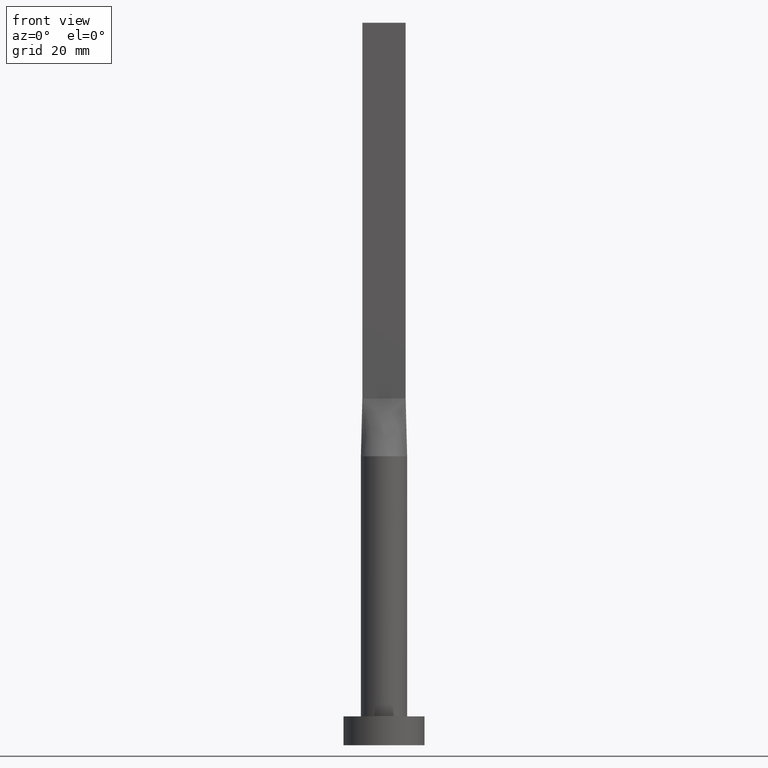
[diagram: clean part render]
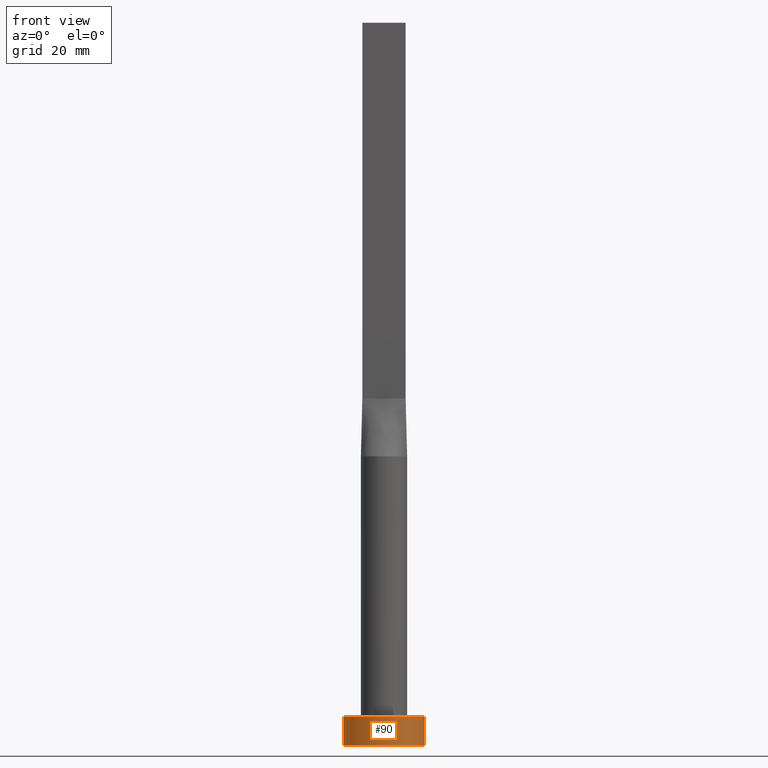
[diagram: same view with one face highlighted and labeled with its STEP entity id]
A machine part, front view. The second image highlights one B-rep face of the part: STEP entity #90.
In plain terms, the highlighted cylindrical surface (partial cylindrical patch) has radius 7 mm, axis along (-0, -0, -1).
Its self-contained STEP definition (entity closure, byte-faithful):
#9 = VERTEX_POINT ( 'NONE', #192 ) ;
#12 = VERTEX_POINT ( 'NONE', #267 ) ;
#15 = VECTOR ( 'NONE', #290, 1000.000000000000000 ) ;
#25 = AXIS2_PLACEMENT_3D ( 'NONE', #485, #89, #265 ) ;
#38 = ORIENTED_EDGE ( 'NONE', *, *, #40, .T. ) ;
#40 = EDGE_CURVE ( 'NONE', #9, #12, #138, .T. ) ;
#41 = CARTESIAN_POINT ( 'NONE',  ( 7.000000000000000000, 8.572527594031473190E-16, 0.000000000000000000 ) ) ;
#69 = CYLINDRICAL_SURFACE ( 'NONE', #488, 7.000000000000000000 ) ;
#72 = DIRECTION ( 'NONE',  ( -1.000000000000000000, 0.000000000000000000, 0.000000000000000000 ) ) ;
#89 = DIRECTION ( 'NONE',  ( 0.000000000000000000, 0.000000000000000000, 1.000000000000000000 ) ) ;
#90 = ADVANCED_FACE ( 'NONE', ( #121 ), #69, .T. ) ;
#92 = DIRECTION ( 'NONE',  ( -0.000000000000000000, -0.000000000000000000, -1.000000000000000000 ) ) ;
#97 = CARTESIAN_POINT ( 'NONE',  ( 7.000000000000000000, 8.572527594031473190E-16, 5.000000000000000000 ) ) ;
#113 = LINE ( 'NONE', #341, #15 ) ;
#116 = EDGE_CURVE ( 'NONE', #572, #150, #113, .T. ) ;
#121 = FACE_OUTER_BOUND ( 'NONE', #555, .T. ) ;
#138 = LINE ( 'NONE', #228, #442 ) ;
#150 = VERTEX_POINT ( 'NONE', #41 ) ;
#158 = DIRECTION ( 'NONE',  ( -0.000000000000000000, -0.000000000000000000, -1.000000000000000000 ) ) ;
#192 = CARTESIAN_POINT ( 'NONE',  ( -7.000000000000000000, 0.000000000000000000, 5.000000000000000000 ) ) ;
#205 = CIRCLE ( 'NONE', #278, 7.000000000000000000 ) ;
#228 = CARTESIAN_POINT ( 'NONE',  ( -7.000000000000000000, 0.000000000000000000, 5.000000000000000000 ) ) ;
#257 = DIRECTION ( 'NONE',  ( 1.000000000000000000, 0.000000000000000000, 0.000000000000000000 ) ) ;
#265 = DIRECTION ( 'NONE',  ( 1.000000000000000000, 0.000000000000000000, 0.000000000000000000 ) ) ;
#267 = CARTESIAN_POINT ( 'NONE',  ( -7.000000000000000000, 0.000000000000000000, 0.000000000000000000 ) ) ;
#271 = EDGE_CURVE ( 'NONE', #12, #150, #205, .T. ) ;
#278 = AXIS2_PLACEMENT_3D ( 'NONE', #431, #347, #257 ) ;
#283 = EDGE_CURVE ( 'NONE', #9, #572, #559, .T. ) ;
#290 = DIRECTION ( 'NONE',  ( -0.000000000000000000, -0.000000000000000000, -1.000000000000000000 ) ) ;
#316 = ORIENTED_EDGE ( 'NONE', *, *, #116, .F. ) ;
#341 = CARTESIAN_POINT ( 'NONE',  ( 7.000000000000000000, 8.572527594031473190E-16, 5.000000000000000000 ) ) ;
#347 = DIRECTION ( 'NONE',  ( 0.000000000000000000, 0.000000000000000000, 1.000000000000000000 ) ) ;
#384 = ORIENTED_EDGE ( 'NONE', *, *, #283, .F. ) ;
#431 = CARTESIAN_POINT ( 'NONE',  ( 0.000000000000000000, 0.000000000000000000, 0.000000000000000000 ) ) ;
#442 = VECTOR ( 'NONE', #92, 1000.000000000000000 ) ;
#485 = CARTESIAN_POINT ( 'NONE',  ( 0.000000000000000000, 0.000000000000000000, 5.000000000000000000 ) ) ;
#488 = AXIS2_PLACEMENT_3D ( 'NONE', #550, #158, #72 ) ;
#550 = CARTESIAN_POINT ( 'NONE',  ( 0.000000000000000000, 0.000000000000000000, 5.000000000000000000 ) ) ;
#555 = EDGE_LOOP ( 'NONE', ( #316, #384, #38, #576 ) ) ;
#559 = CIRCLE ( 'NONE', #25, 7.000000000000000000 ) ;
#572 = VERTEX_POINT ( 'NONE', #97 ) ;
#576 = ORIENTED_EDGE ( 'NONE', *, *, #271, .T. ) ;